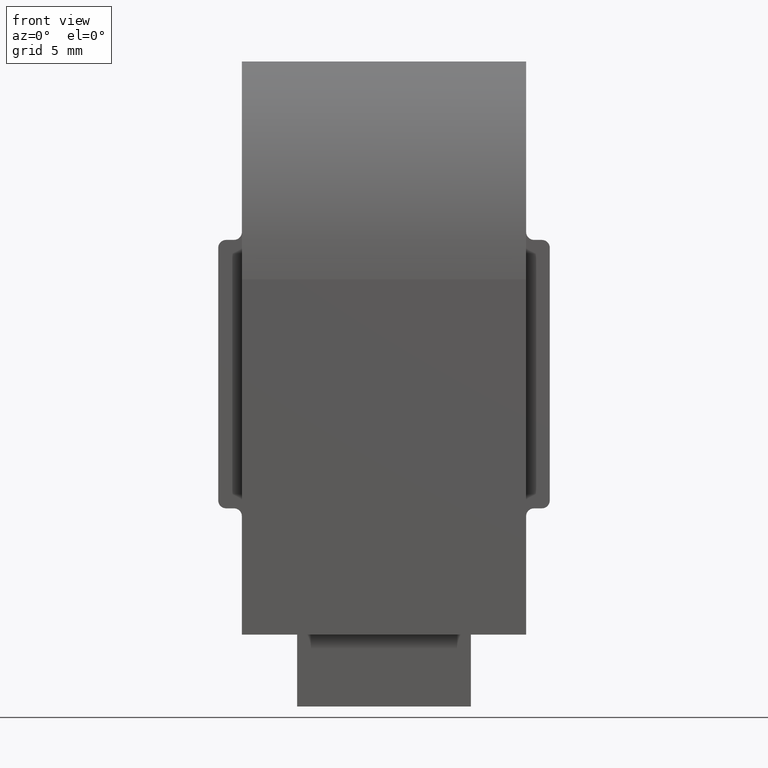
[diagram: clean part render]
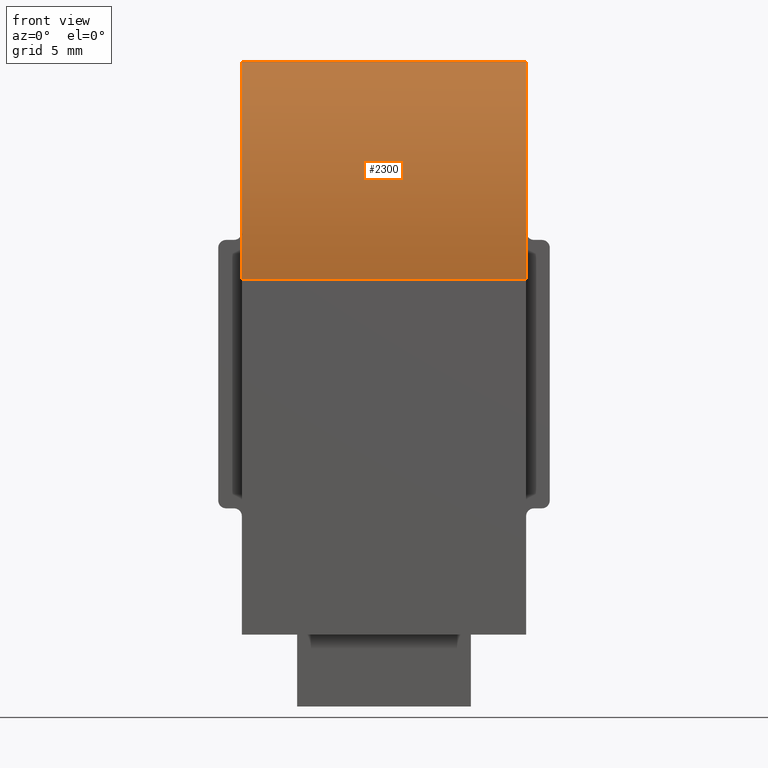
[diagram: same view with one face highlighted and labeled with its STEP entity id]
A machine part, front view. The second image highlights one B-rep face of the part: STEP entity #2300.
In plain terms, the highlighted cylindrical surface (partial cylindrical patch) has radius 22.5 mm, axis along (-1, -0, -0).
Its self-contained STEP definition (entity closure, byte-faithful):
#33 = CARTESIAN_POINT ( 'NONE',  ( 9.000000000000000000, 4.728956136456109682, 36.29999999999999716 ) ) ;
#309 = LINE ( 'NONE', #33, #14242 ) ;
#678 = DIRECTION ( 'NONE',  ( 0.000000000000000000, 0.000000000000000000, -1.000000000000000000 ) ) ;
#1087 = CARTESIAN_POINT ( 'NONE',  ( 9.000000000000000000, 4.728956136456109682, 36.29999999999999716 ) ) ;
#1139 = VERTEX_POINT ( 'NONE', #2373 ) ;
#2266 = AXIS2_PLACEMENT_3D ( 'NONE', #11384, #12575, #12637 ) ;
#2300 = ADVANCED_FACE ( 'NONE', ( #5558 ), #6626, .T. ) ;
#2320 = EDGE_CURVE ( 'NONE', #4036, #1139, #14245, .T. ) ;
#2373 = CARTESIAN_POINT ( 'NONE',  ( -9.000000000000000000, -1.387778780781445676E-14, 22.50000000000001066 ) ) ;
#2546 = VERTEX_POINT ( 'NONE', #1087 ) ;
#2794 = VERTEX_POINT ( 'NONE', #12737 ) ;
#3264 = ORIENTED_EDGE ( 'NONE', *, *, #2320, .T. ) ;
#3564 = CARTESIAN_POINT ( 'NONE',  ( -9.000000000000000000, 4.728956136456109682, 36.29999999999999716 ) ) ;
#3644 = EDGE_LOOP ( 'NONE', ( #3264, #3975, #11847, #15687 ) ) ;
#3975 = ORIENTED_EDGE ( 'NONE', *, *, #12635, .F. ) ;
#4036 = VERTEX_POINT ( 'NONE', #3564 ) ;
#5533 = CIRCLE ( 'NONE', #7154, 22.50000000000000711 ) ;
#5558 = FACE_OUTER_BOUND ( 'NONE', #3644, .T. ) ;
#6018 = VECTOR ( 'NONE', #15196, 1000.000000000000000 ) ;
#6626 = CYLINDRICAL_SURFACE ( 'NONE', #2266, 22.50000000000000355 ) ;
#7154 = AXIS2_PLACEMENT_3D ( 'NONE', #13796, #16510, #16043 ) ;
#8641 = EDGE_CURVE ( 'NONE', #2546, #4036, #309, .T. ) ;
#9831 = CARTESIAN_POINT ( 'NONE',  ( 9.000000000000000000, -1.387778780781445676E-14, 22.50000000000001066 ) ) ;
#9849 = CARTESIAN_POINT ( 'NONE',  ( -9.000000000000000000, 22.49999999999999289, 22.50000000000001066 ) ) ;
#10704 = AXIS2_PLACEMENT_3D ( 'NONE', #9849, #13989, #678 ) ;
#11384 = CARTESIAN_POINT ( 'NONE',  ( 9.000000000000000000, 22.49999999999999289, 22.50000000000001066 ) ) ;
#11847 = ORIENTED_EDGE ( 'NONE', *, *, #15420, .F. ) ;
#12575 = DIRECTION ( 'NONE',  ( -1.000000000000000000, -0.000000000000000000, -0.000000000000000000 ) ) ;
#12635 = EDGE_CURVE ( 'NONE', #2794, #1139, #13827, .T. ) ;
#12637 = DIRECTION ( 'NONE',  ( 0.000000000000000000, 0.000000000000000000, 1.000000000000000000 ) ) ;
#12737 = CARTESIAN_POINT ( 'NONE',  ( 9.000000000000000000, -1.387778780781445676E-14, 22.50000000000001066 ) ) ;
#13796 = CARTESIAN_POINT ( 'NONE',  ( 9.000000000000000000, 22.49999999999999289, 22.50000000000001066 ) ) ;
#13827 = LINE ( 'NONE', #9831, #6018 ) ;
#13989 = DIRECTION ( 'NONE',  ( 1.000000000000000000, -0.000000000000000000, 0.000000000000000000 ) ) ;
#14242 = VECTOR ( 'NONE', #16212, 1000.000000000000000 ) ;
#14245 = CIRCLE ( 'NONE', #10704, 22.50000000000000711 ) ;
#15196 = DIRECTION ( 'NONE',  ( -1.000000000000000000, -0.000000000000000000, -0.000000000000000000 ) ) ;
#15420 = EDGE_CURVE ( 'NONE', #2546, #2794, #5533, .T. ) ;
#15687 = ORIENTED_EDGE ( 'NONE', *, *, #8641, .T. ) ;
#16043 = DIRECTION ( 'NONE',  ( 0.000000000000000000, 0.000000000000000000, -1.000000000000000000 ) ) ;
#16212 = DIRECTION ( 'NONE',  ( -1.000000000000000000, -0.000000000000000000, -0.000000000000000000 ) ) ;
#16510 = DIRECTION ( 'NONE',  ( 1.000000000000000000, -0.000000000000000000, 0.000000000000000000 ) ) ;